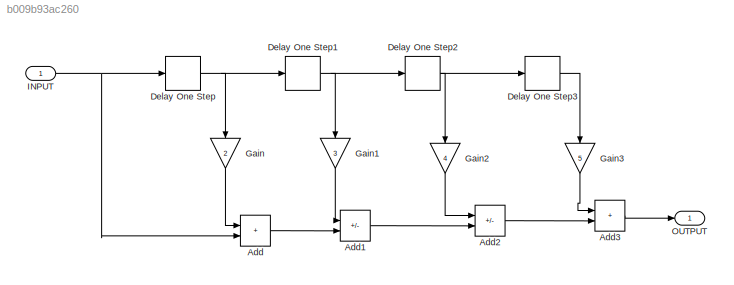
MODEL slx_b009b93ac260
KIND model
CONFIG AbsTol = auto
CONFIG EnableMultiTasking = off
CONFIG FixedStep = auto
CONFIG MaxStep = auto
CONFIG MinStep = auto
CONFIG RelTol = 1e-3
CONFIG SampleTimeConstraint = Unconstrained
CONFIG SolverName = VariableStepAuto
CONFIG StartTime = 0.0
CONFIG StopTime = 10.0
BLOCK [Sum] Add
  IconShape = rectangular
  Ports = [2, 1]
BLOCK [Sum] Add1
  IconShape = rectangular
  Inputs = -+
  Ports = [2, 1]
BLOCK [Sum] Add2
  IconShape = rectangular
  Inputs = -+
  Ports = [2, 1]
BLOCK [Sum] Add3
  IconShape = rectangular
  Ports = [2, 1]
BLOCK [Delay] Delay One Step
  DelayLength = 1
  InputPortMap = u0
  Ports = [1, 1]
BLOCK [Delay] Delay One Step1
  DelayLength = 1
  InputPortMap = u0
  Ports = [1, 1]
BLOCK [Delay] Delay One Step2
  DelayLength = 1
  InputPortMap = u0
  Ports = [1, 1]
BLOCK [Delay] Delay One Step3
  DelayLength = 1
  InputPortMap = u0
  Ports = [1, 1]
BLOCK [Gain] Gain
  Gain = 2
  NameLocation = left
BLOCK [Gain] Gain1
  Gain = 3
  NameLocation = left
BLOCK [Gain] Gain2
  Gain = 4
  NameLocation = left
BLOCK [Gain] Gain3
  Gain = 5
  NameLocation = left
BLOCK [Inport] INPUT
  OutDataTypeStr = double
  PortDimensions = 1
  SampleTime = [0,1]
  SamplingMode = Sample based
  SignalType = real
BLOCK [Outport] OUTPUT
  OutDataTypeStr = double
  PortDimensions = 1
  SampleTime = [0,1]
  SamplingMode = Sample based
  SignalType = real
LINE Add1:1 -> Add2:2
LINE Add2:1 -> Add3:2
LINE Add3:1 -> OUTPUT:1
LINE Add:1 -> Add1:2
NET Delay One Step1:1 -> Delay One Step2:1, Gain1:1
NET Delay One Step2:1 -> Delay One Step3:1, Gain2:1
LINE Delay One Step3:1 -> Gain3:1
NET Delay One Step:1 -> Delay One Step1:1, Gain:1
LINE Gain1:1 -> Add1:1
LINE Gain2:1 -> Add2:1
LINE Gain3:1 -> Add3:1
LINE Gain:1 -> Add:1
NET INPUT:1 -> Add:2, Delay One Step:1
note: NET lines group one-source signal fan-out (src -> all destinations, sorted); 1:1 wires keep LINE
